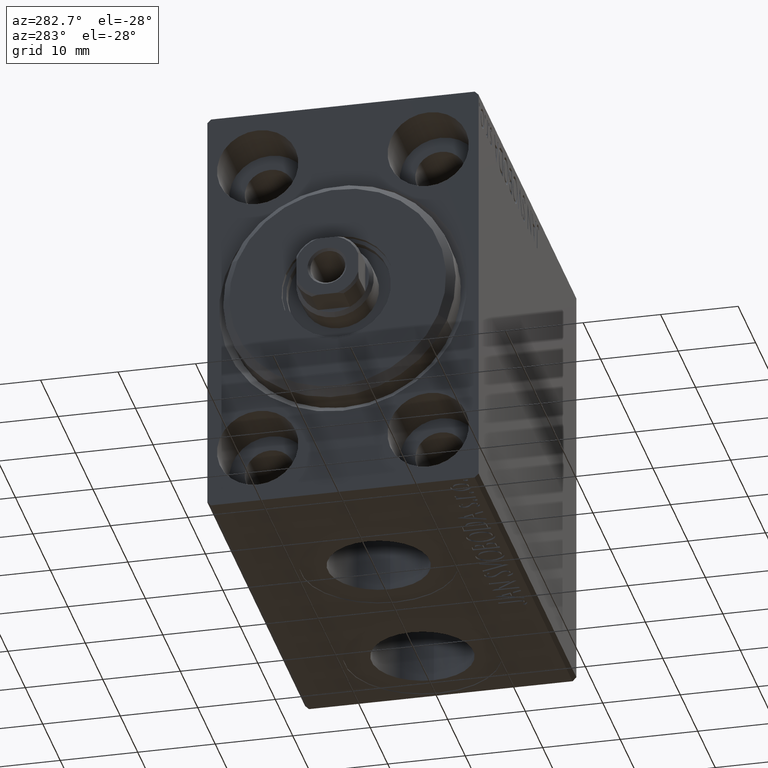
[diagram: clean part render]
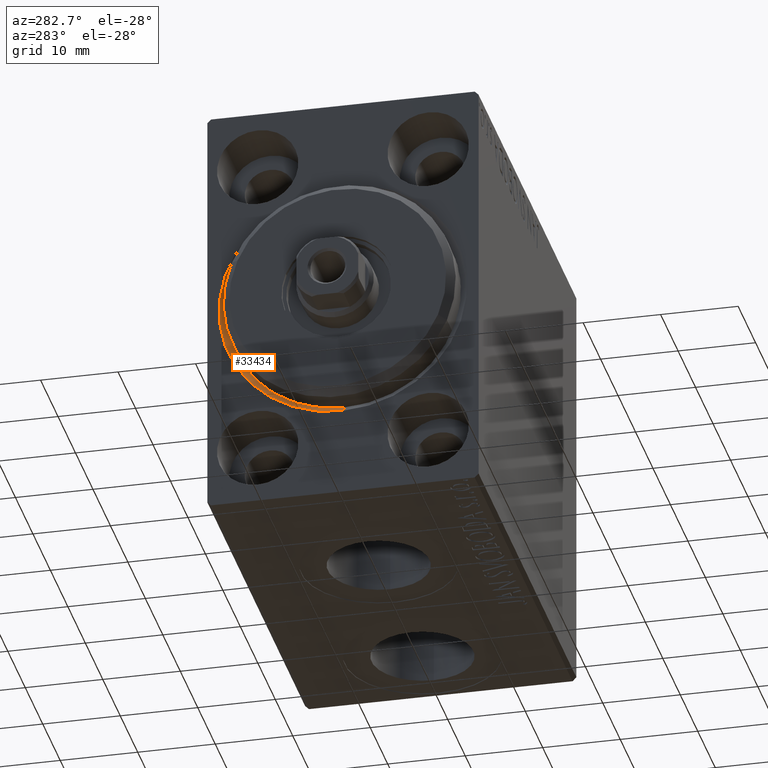
[diagram: same view with one face highlighted and labeled with its STEP entity id]
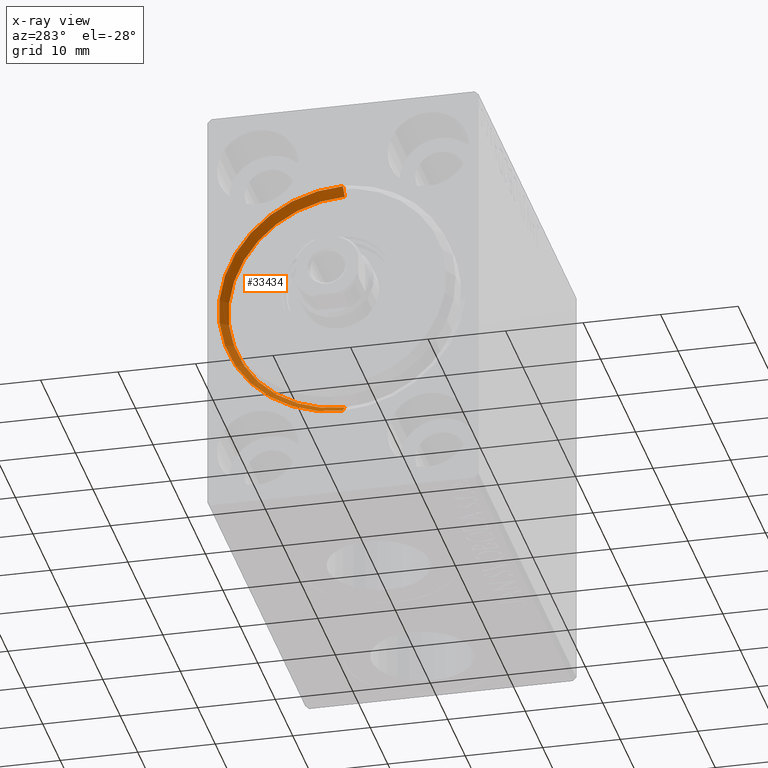
[diagram: x-ray of the same camera — body ghosted, the highlighted face saturated]
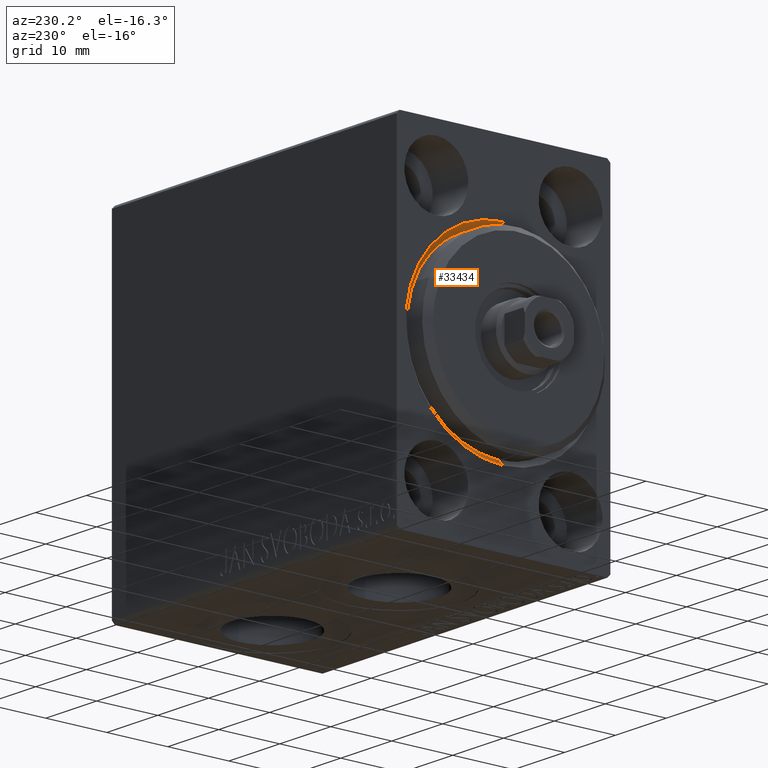
[diagram: same view with one face highlighted and labeled with its STEP entity id]
A machine part, auxiliary view. The second image highlights one B-rep face of the part: STEP entity #33434.
The next image is the same camera in x-ray: the body ghosted, the highlighted face saturated — about 0% of this face is hidden behind the body in this view.
A second angle (auxiliary view) of the same face is appended — the face is thin or edge-on in the first view.
In plain terms, the highlighted conical surface has half-angle 45 deg.
Its self-contained STEP definition (entity closure, byte-faithful):
#1137 = AXIS2_PLACEMENT_3D ( 'NONE', #16595, #36639, #6138 ) ;
#1381 = VERTEX_POINT ( 'NONE', #2308 ) ;
#1423 = CARTESIAN_POINT ( 'NONE',  ( 1.000000000000013101, 0.000000000000000000, 15.00000000000000000 ) ) ;
#1534 = CARTESIAN_POINT ( 'NONE',  ( 1.000000000000013101, 0.000000000000000000, 15.00000000000000000 ) ) ;
#1573 = DIRECTION ( 'NONE',  ( 0.000000000000000000, 0.000000000000000000, -1.000000000000000000 ) ) ;
#1758 = LINE ( 'NONE', #26016, #6624 ) ;
#2308 = CARTESIAN_POINT ( 'NONE',  ( 1.000000000000013101, 1.836970198721029589E-15, -15.00000000000000000 ) ) ;
#2362 = AXIS2_PLACEMENT_3D ( 'NONE', #39626, #18926, #1573 ) ;
#5142 = DIRECTION ( 'NONE',  ( -1.000000000000000000, 0.000000000000000000, 0.000000000000000000 ) ) ;
#5452 = EDGE_CURVE ( 'NONE', #19836, #32529, #43098, .T. ) ;
#6138 = DIRECTION ( 'NONE',  ( 0.000000000000000000, 0.000000000000000000, -1.000000000000000000 ) ) ;
#6624 = VECTOR ( 'NONE', #15333, 1000.000000000000114 ) ;
#9756 = ORIENTED_EDGE ( 'NONE', *, *, #35271, .F. ) ;
#15333 = DIRECTION ( 'NONE',  ( -0.7071067811865469066, 8.659560562354940254E-17, -0.7071067811865481278 ) ) ;
#16412 = ORIENTED_EDGE ( 'NONE', *, *, #5452, .F. ) ;
#16595 = CARTESIAN_POINT ( 'NONE',  ( 0.000000000000000000, 0.000000000000000000, 0.000000000000000000 ) ) ;
#17254 = CIRCLE ( 'NONE', #2362, 15.00000000000000000 ) ;
#18926 = DIRECTION ( 'NONE',  ( -1.000000000000000000, 0.000000000000000000, 0.000000000000000000 ) ) ;
#19147 = CARTESIAN_POINT ( 'NONE',  ( 1.000000000000013101, 0.000000000000000000, 0.000000000000000000 ) ) ;
#19609 = ORIENTED_EDGE ( 'NONE', *, *, #35836, .F. ) ;
#19836 = VERTEX_POINT ( 'NONE', #23410 ) ;
#21359 = DIRECTION ( 'NONE',  ( -0.7071067811865469066, 0.000000000000000000, 0.7071067811865481278 ) ) ;
#22046 = CARTESIAN_POINT ( 'NONE',  ( 0.000000000000000000, 0.000000000000000000, 16.00000000000001421 ) ) ;
#23410 = CARTESIAN_POINT ( 'NONE',  ( 0.000000000000000000, 1.959434878635766709E-15, -16.00000000000001421 ) ) ;
#26016 = CARTESIAN_POINT ( 'NONE',  ( 1.000000000000013101, 1.836970198721029589E-15, -15.00000000000000000 ) ) ;
#26801 = EDGE_LOOP ( 'NONE', ( #9756, #19609, #32644, #16412 ) ) ;
#28973 = DIRECTION ( 'NONE',  ( 0.000000000000000000, 0.000000000000000000, 1.000000000000000000 ) ) ;
#31457 = CONICAL_SURFACE ( 'NONE', #38534, 15.00000000000000000, 0.7853981633974491672 ) ;
#32529 = VERTEX_POINT ( 'NONE', #22046 ) ;
#32644 = ORIENTED_EDGE ( 'NONE', *, *, #35199, .T. ) ;
#33434 = ADVANCED_FACE ( 'NONE', ( #43203 ), #31457, .F. ) ;
#35199 = EDGE_CURVE ( 'NONE', #37654, #32529, #38718, .T. ) ;
#35271 = EDGE_CURVE ( 'NONE', #1381, #19836, #1758, .T. ) ;
#35836 = EDGE_CURVE ( 'NONE', #37654, #1381, #17254, .T. ) ;
#36639 = DIRECTION ( 'NONE',  ( 1.000000000000000000, 0.000000000000000000, 0.000000000000000000 ) ) ;
#37654 = VERTEX_POINT ( 'NONE', #1423 ) ;
#38534 = AXIS2_PLACEMENT_3D ( 'NONE', #19147, #5142, #28973 ) ;
#38718 = LINE ( 'NONE', #1534, #39324 ) ;
#39324 = VECTOR ( 'NONE', #21359, 1000.000000000000114 ) ;
#39626 = CARTESIAN_POINT ( 'NONE',  ( 1.000000000000013101, 0.000000000000000000, 0.000000000000000000 ) ) ;
#43098 = CIRCLE ( 'NONE', #1137, 16.00000000000001421 ) ;
#43203 = FACE_OUTER_BOUND ( 'NONE', #26801, .T. ) ;